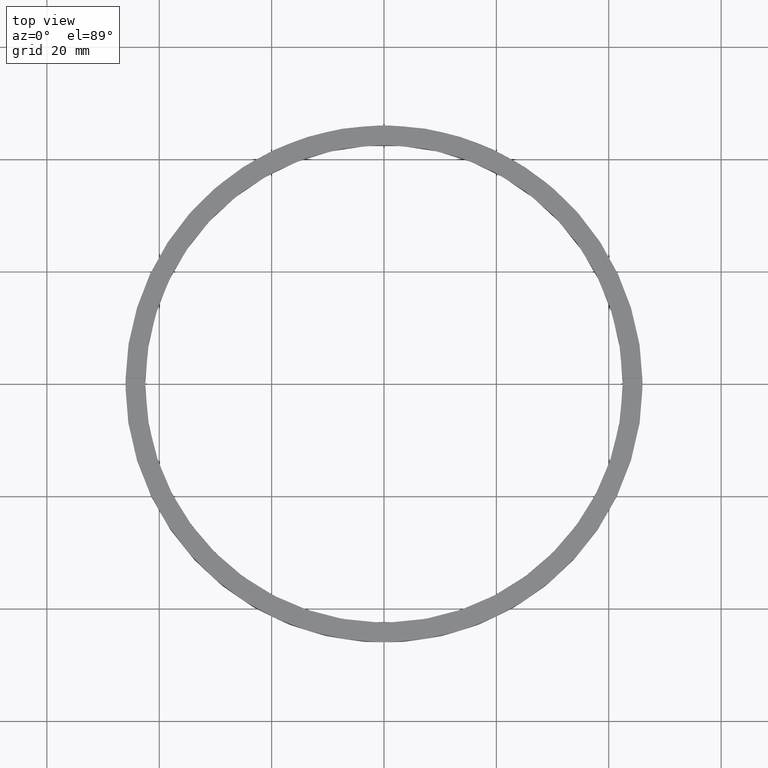
[diagram: clean part render]
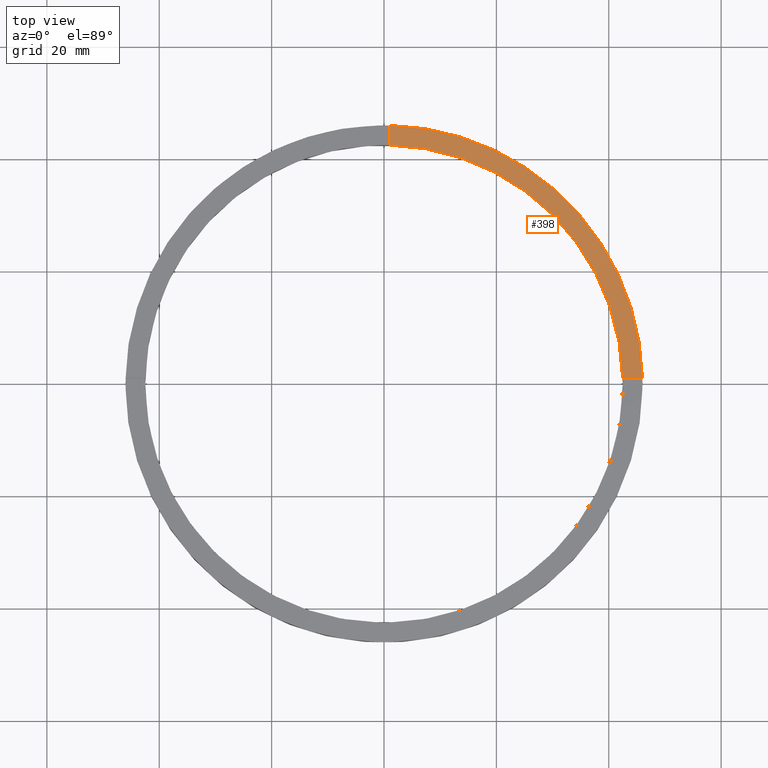
[diagram: same view with one face highlighted and labeled with its STEP entity id]
A machine part, top view. The second image highlights one B-rep face of the part: STEP entity #398.
In plain terms, the highlighted planar face has unit normal (0, 0, 1).
Its self-contained STEP definition (entity closure, byte-faithful):
#18 = CARTESIAN_POINT ( 'NONE',  ( 0.000000000000000000, 0.000000000000000000, 4.500000000000000000 ) ) ;
#30 = DIRECTION ( 'NONE',  ( 0.000000000000000000, 0.000000000000000000, 1.000000000000000000 ) ) ;
#53 = AXIS2_PLACEMENT_3D ( 'NONE', #565, #123, #349 ) ;
#61 = CARTESIAN_POINT ( 'NONE',  ( 42.48823366533375889, 0.9999999999998439026, 4.500000000000000000 ) ) ;
#75 = DIRECTION ( 'NONE',  ( 0.000000000000000000, 0.000000000000000000, 1.000000000000000000 ) ) ;
#86 = DIRECTION ( 'NONE',  ( 1.000000000000000000, 0.000000000000000000, -0.000000000000000000 ) ) ;
#115 = VECTOR ( 'NONE', #781, 1000.000000000000000 ) ;
#123 = DIRECTION ( 'NONE',  ( 0.000000000000000000, 0.000000000000000000, 1.000000000000000000 ) ) ;
#127 = EDGE_CURVE ( 'NONE', #213, #196, #748, .T. ) ;
#141 = EDGE_CURVE ( 'NONE', #461, #540, #746, .T. ) ;
#196 = VERTEX_POINT ( 'NONE', #579 ) ;
#205 = CARTESIAN_POINT ( 'NONE',  ( 45.98912915026767934, 0.9999999999998441247, 4.500000000000000000 ) ) ;
#213 = VERTEX_POINT ( 'NONE', #205 ) ;
#217 = ORIENTED_EDGE ( 'NONE', *, *, #273, .F. ) ;
#222 = ORIENTED_EDGE ( 'NONE', *, *, #141, .F. ) ;
#224 = AXIS2_PLACEMENT_3D ( 'NONE', #18, #75, #325 ) ;
#267 = PLANE ( 'NONE',  #549 ) ;
#273 = EDGE_CURVE ( 'NONE', #213, #461, #362, .T. ) ;
#319 = EDGE_CURVE ( 'NONE', #540, #196, #374, .T. ) ;
#325 = DIRECTION ( 'NONE',  ( 1.000000000000000000, 0.000000000000000000, 0.000000000000000000 ) ) ;
#349 = DIRECTION ( 'NONE',  ( 1.000000000000000000, 0.000000000000000000, 0.000000000000000000 ) ) ;
#362 = LINE ( 'NONE', #651, #115 ) ;
#369 = VECTOR ( 'NONE', #655, 1000.000000000000000 ) ;
#374 = LINE ( 'NONE', #402, #369 ) ;
#398 = ADVANCED_FACE ( 'NONE', ( #610 ), #267, .T. ) ;
#402 = CARTESIAN_POINT ( 'NONE',  ( 0.9999999999999737987, 36.00000000000000000, 4.500000000000000000 ) ) ;
#409 = EDGE_LOOP ( 'NONE', ( #431, #222, #217, #779 ) ) ;
#431 = ORIENTED_EDGE ( 'NONE', *, *, #319, .F. ) ;
#461 = VERTEX_POINT ( 'NONE', #61 ) ;
#502 = CARTESIAN_POINT ( 'NONE',  ( 0.000000000000000000, 0.000000000000000000, 4.500000000000000000 ) ) ;
#540 = VERTEX_POINT ( 'NONE', #590 ) ;
#549 = AXIS2_PLACEMENT_3D ( 'NONE', #502, #30, #86 ) ;
#565 = CARTESIAN_POINT ( 'NONE',  ( 0.000000000000000000, 0.000000000000000000, 4.500000000000000000 ) ) ;
#579 = CARTESIAN_POINT ( 'NONE',  ( 0.9999999999999737987, 45.98912915026767223, 4.500000000000000000 ) ) ;
#590 = CARTESIAN_POINT ( 'NONE',  ( 0.9999999999999737987, 42.48823366533375889, 4.500000000000000000 ) ) ;
#610 = FACE_OUTER_BOUND ( 'NONE', #409, .T. ) ;
#651 = CARTESIAN_POINT ( 'NONE',  ( 35.99999999999999289, 0.9999999999998434586, 4.500000000000000000 ) ) ;
#655 = DIRECTION ( 'NONE',  ( 0.000000000000000000, 1.000000000000000000, 0.000000000000000000 ) ) ;
#746 = CIRCLE ( 'NONE', #53, 42.50000000000000711 ) ;
#748 = CIRCLE ( 'NONE', #224, 46.00000000000000000 ) ;
#779 = ORIENTED_EDGE ( 'NONE', *, *, #127, .T. ) ;
#781 = DIRECTION ( 'NONE',  ( -1.000000000000000000, -6.505213034913025371E-17, -0.000000000000000000 ) ) ;